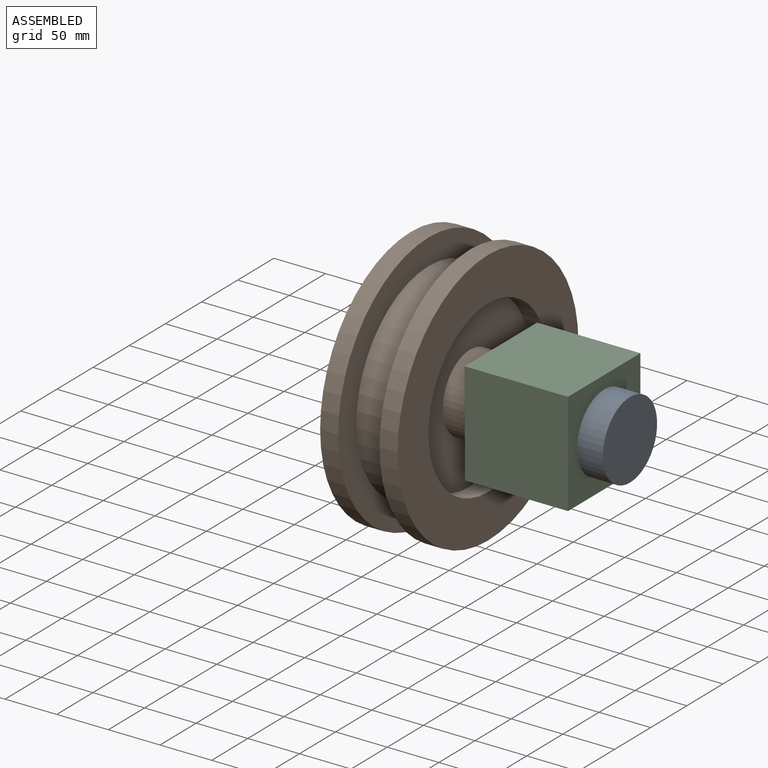
[diagram: assembled view]
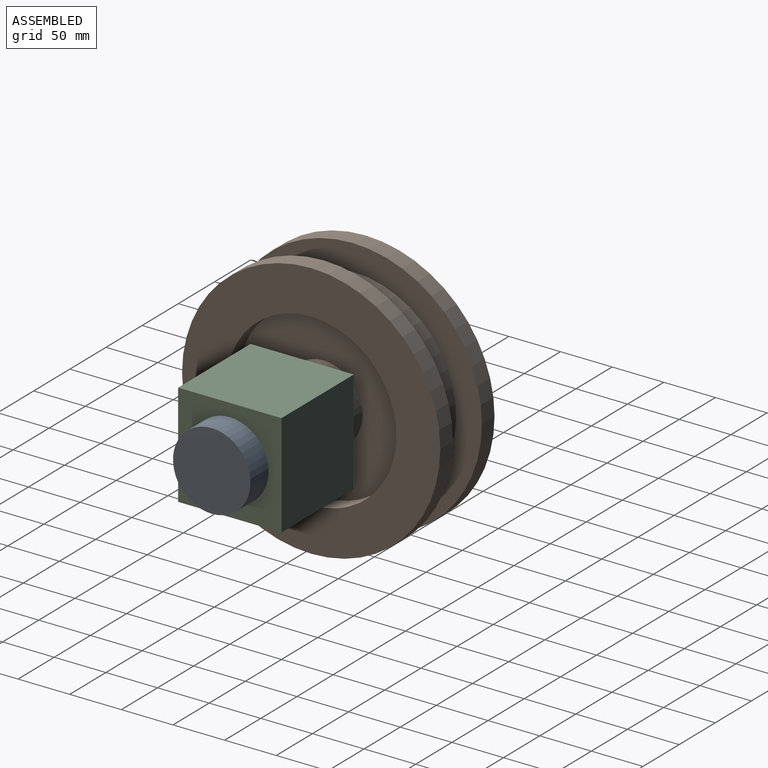
[diagram: assembled view, second angle]
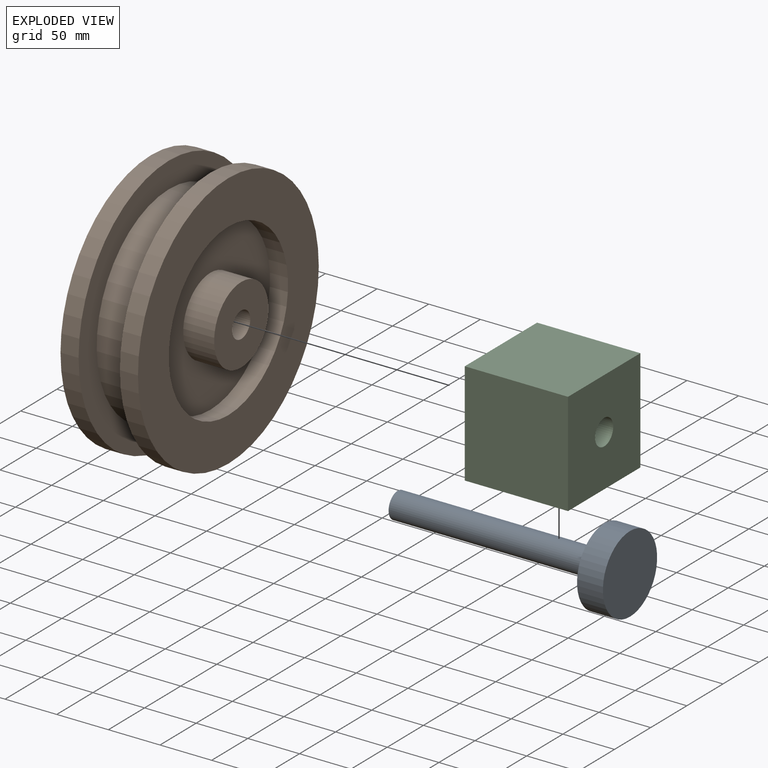
[diagram: exploded view]
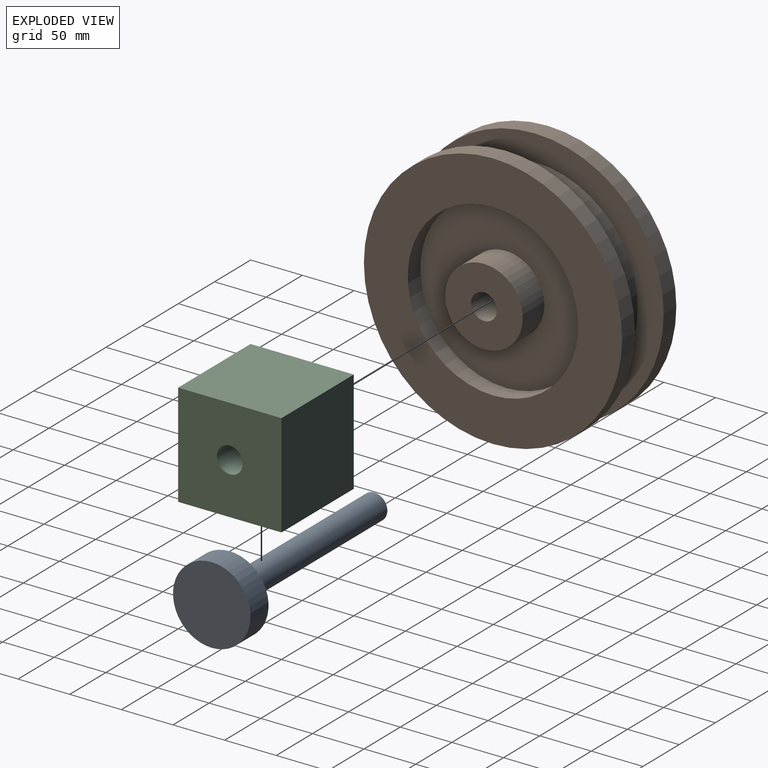
[diagram: exploded view, second angle]
ASSEMBLY  parts=3 mates=2
PART A: 5 faces, bbox 225x75x75 mm
  f0: cylinder r=37.5mm len=75mm, axis (-1,0,0), area 5890.5mm2, adj f1,f2
  f1: plane 75x75mm, normal (1,0,0), area 4417.9mm2, adj f0
  f2: plane 75x75mm, normal (-1,0,0), area 3927mm2, adj f0,f4
  f3: plane 25x25mm, normal (-1,0,0), area 490.9mm2, adj f4
  f4: cylinder r=12.5mm len=200mm, axis (1,0,0), area 15708mm2, adj f2,f3
PART B: 16 faces, bbox 100x250x250 mm
  f0: cylinder r=37.5mm len=75mm, axis (-1,0,0), area 7068.6mm2, adj f1,f15
  f1: plane 75x75mm, normal (-1,0,0), area 3927mm2, adj f0,f2
  f2: cylinder r=12.5mm len=100mm, axis (-1,0,0), area 7854mm2, adj f1,f3
  f3: plane 75x75mm, normal (1,0,0), area 3927mm2, adj f2,f4
  f4: cylinder r=37.5mm len=75mm, axis (-1,0,0), area 7068.6mm2, adj f3,f5
  f5: plane 165x165mm, normal (1,0,0), area 16964.6mm2, adj f4,f6
  f6: cylinder r=82.5mm len=165mm, axis (-1,0,0), area 9071.3mm2, adj f5,f7
  f7: plane 250x250mm, normal (1,0,0), area 27704.9mm2, adj f6,f8
  f8: cylinder r=125mm len=250mm, axis (-1,0,0), area 13744.5mm2, adj f7,f9
  f9: plane 250x250mm, normal (-1,0,0), area 17671.5mm2, adj f8,f10
  f10: cylinder r=100mm len=200mm, axis (-1,0,0), area 25132.7mm2, adj f9,f11
  f11: plane 250x250mm, normal (1,0,0), area 17671.5mm2, adj f10,f12
  f12: cylinder r=125mm len=250mm, axis (-1,0,0), area 13744.5mm2, adj f11,f13
  f13: plane 250x250mm, normal (-1,0,0), area 27704.9mm2, adj f12,f14
  f14: cylinder r=82.5mm len=165mm, axis (-1,0,0), area 9071.3mm2, adj f13,f15
  f15: plane 165x165mm, normal (-1,0,0), area 16964.6mm2, adj f0,f14
PART C: 7 faces, bbox 100x100x100 mm
  f0: plane 100x100mm, normal (0,1,0), area 10000mm2, adj f1,f3,f4,f5
  f1: plane 100x100mm, normal (0,0,1), area 10000mm2, adj f0,f2,f4,f5
  f2: plane 100x100mm, normal (0,-1,0), area 10000mm2, adj f1,f3,f4,f5
  f3: plane 100x100mm, normal (0,0,-1), area 10000mm2, adj f0,f2,f4,f5
  f4: plane 100x100mm, normal (1,0,0), area 9509.1mm2, adj f0,f1,f2,f3,f6
  f5: plane 100x100mm, normal (-1,0,0), area 9509.1mm2, adj f0,f1,f2,f3,f6
  f6: cylinder r=12.5mm len=100mm, axis (1,0,0), area 7854mm2, adj f4,f5
PLACE A at identity
PLACE B at identity
PLACE C at identity fixed
MATE revolute B.f0 <-> A.f4  axis (-1,0,0) through (-50,0,0)mm
MATE revolute A.f4 <-> C.f6  axis (1,0,0) through (150,0,0)mm
